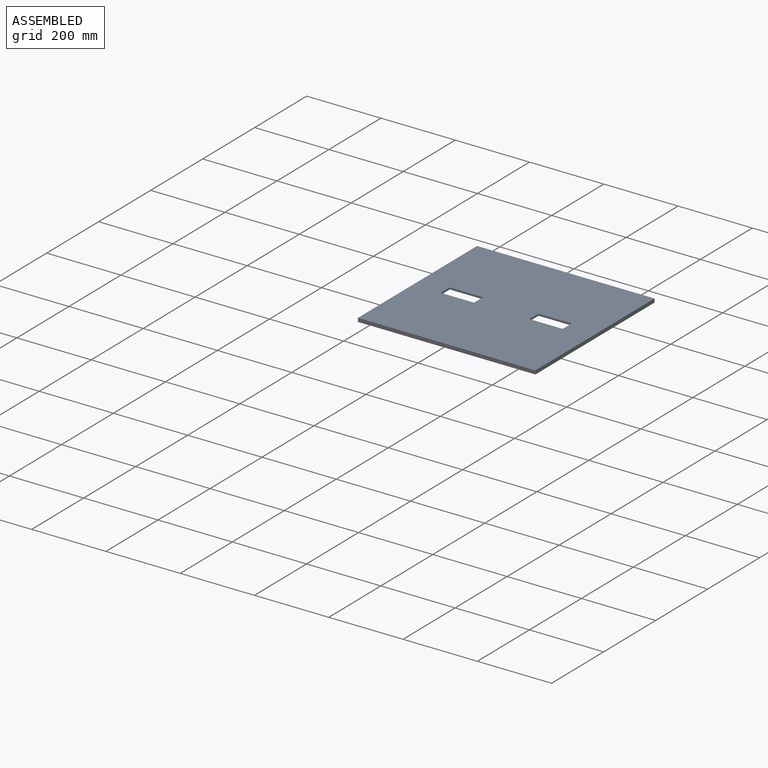
[diagram: assembled view]
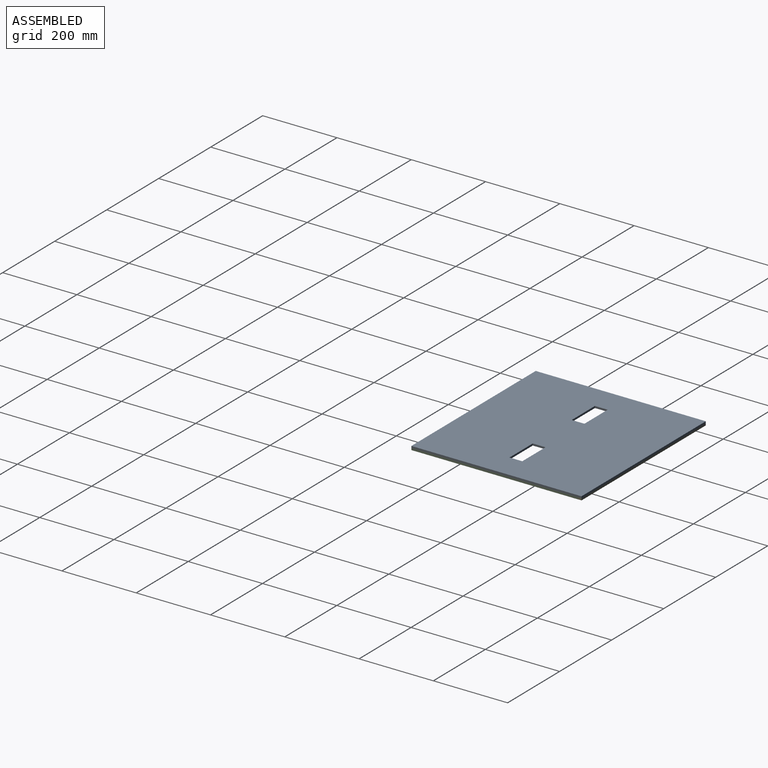
[diagram: assembled view, second angle]
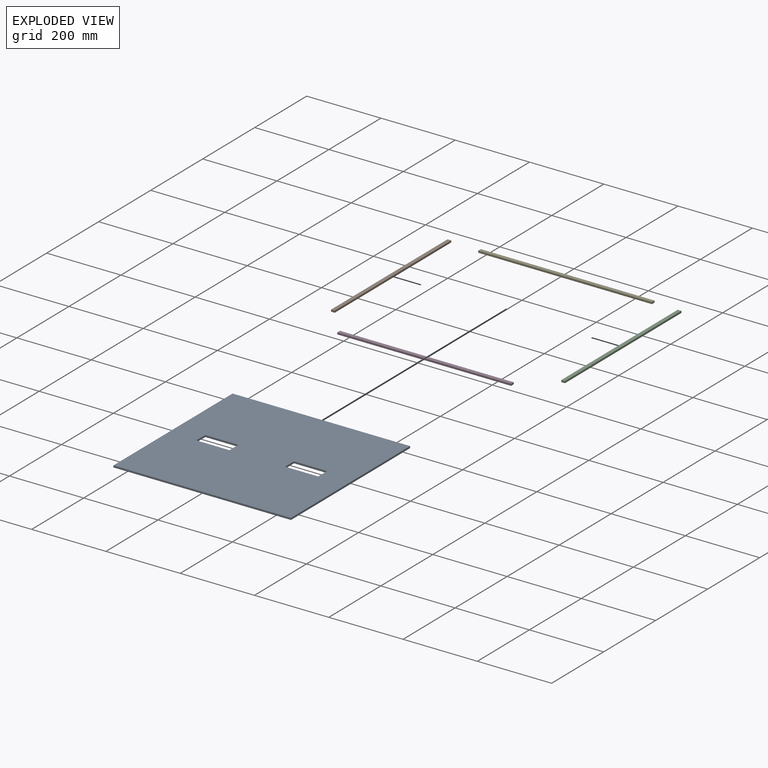
[diagram: exploded view]
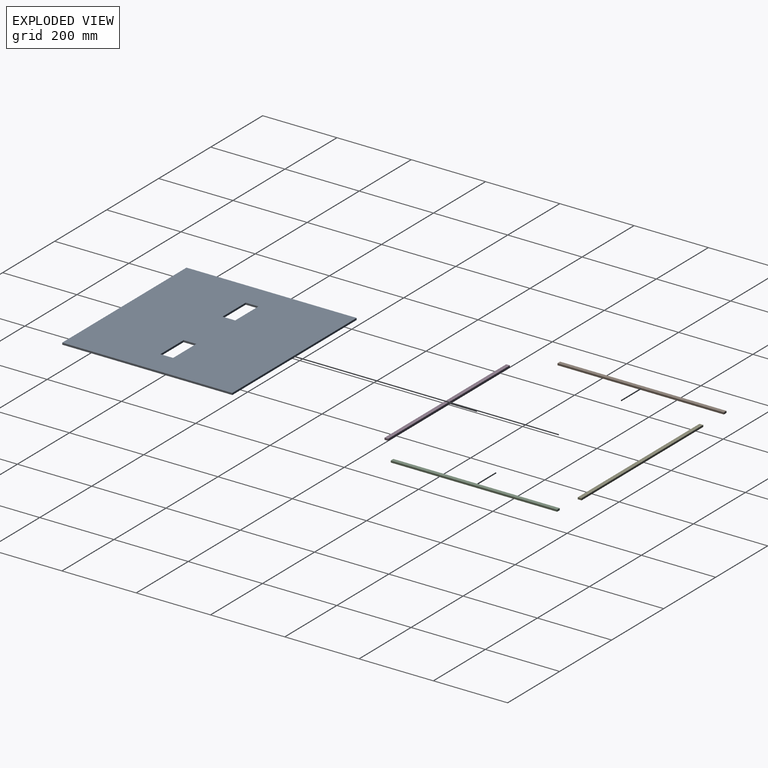
[diagram: exploded view, second angle]
ASSEMBLY  parts=5 mates=4
PART A: 14 faces, bbox 478x458x5 mm
  f0: plane 478x5mm, normal (0,-1,0), area 2390mm2, adj f1,f11,f12,f13
  f1: plane 458x5mm, normal (1,0,0), area 2290mm2, adj f0,f2,f12,f13
  f2: plane 478x5mm, normal (0,1,0), area 2390mm2, adj f1,f11,f12,f13
  f3: plane 34.29x5mm, normal (1,0,0), area 171.5mm2, adj f4,f9,f12,f13
  f4: plane 89.27x5mm, normal (0,-1,0), area 446.3mm2, adj f3,f5,f12,f13
  f5: plane 34.29x5mm, normal (-1,0,0), area 171.5mm2, adj f4,f9,f12,f13
  f6: plane 89.27x5mm, normal (0,-1,0), area 446.3mm2, adj f7,f10,f12,f13
  f7: plane 34.29x5mm, normal (-1,0,0), area 171.5mm2, adj f6,f8,f12,f13
  f8: plane 89.27x5mm, normal (0,1,0), area 446.3mm2, adj f7,f10,f12,f13
  f9: plane 89.27x5mm, normal (0,1,0), area 446.3mm2, adj f3,f5,f12,f13
  f10: plane 34.29x5mm, normal (1,0,0), area 171.5mm2, adj f6,f8,f12,f13
  f11: plane 458x5mm, normal (-1,0,0), area 2290mm2, adj f0,f2,f12,f13
  f12: plane 478x458mm, normal (0,0,-1), area 212802mm2, adj f0,f1,f2,f3,f4,f5,f6,f7
  f13: plane 478x458mm, normal (0,0,1), area 212802mm2, adj f0,f1,f2,f3,f4,f5,f6,f7
PART B: 6 faces, bbox 10x448x5 mm
  f0: plane 448x5mm, normal (-1,0,0), area 2240mm2, adj f1,f3,f4,f5
  f1: plane 10x5mm, normal (0,-1,0), area 50mm2, adj f0,f2,f4,f5
  f2: plane 448x5mm, normal (1,0,0), area 2240mm2, adj f1,f3,f4,f5
  f3: plane 10x5mm, normal (0,1,0), area 50mm2, adj f0,f2,f4,f5
  f4: plane 448x10mm, normal (0,0,-1), area 4480mm2, adj f0,f1,f2,f3
  f5: plane 448x10mm, normal (0,0,1), area 4480mm2, adj f0,f1,f2,f3
PART C: same geometry as B
PART D: 6 faces, bbox 468x10x5 mm
  f0: plane 10x5mm, normal (1,0,0), area 50mm2, adj f1,f3,f4,f5
  f1: plane 468x5mm, normal (0,1,0), area 2340mm2, adj f0,f2,f4,f5
  f2: plane 10x5mm, normal (-1,0,0), area 50mm2, adj f1,f3,f4,f5
  f3: plane 468x5mm, normal (0,-1,0), area 2340mm2, adj f0,f2,f4,f5
  f4: plane 468x10mm, normal (0,0,-1), area 4680mm2, adj f0,f1,f2,f3
  f5: plane 468x10mm, normal (0,0,1), area 4680mm2, adj f0,f1,f2,f3
PART E: same geometry as D
PLACE A t=(-251.94,721.28,-1.81)mm
PLACE B t=(-766.82,731.28,-6.81)mm
PLACE C t=(-298.82,721.28,-6.81)mm
PLACE D t=(-261.94,765.33,-6.81)mm
PLACE E t=(-251.94,1213.33,-6.81)mm
MATE fastened B.f1 <-> D.f1  axis (0,-1,0) through (-219.13,-308.01,-11.81)mm
MATE fastened D.f0 <-> C.f0  axis (1,0,0) through (248.87,-318.01,-11.81)mm
MATE fastened C.f1 <-> A.f0  axis (0,-1,0) through (258.87,-318.01,-6.81)mm
MATE fastened E.f2 <-> B.f2  axis (-1,0,0) through (-209.13,139.99,-11.81)mm
